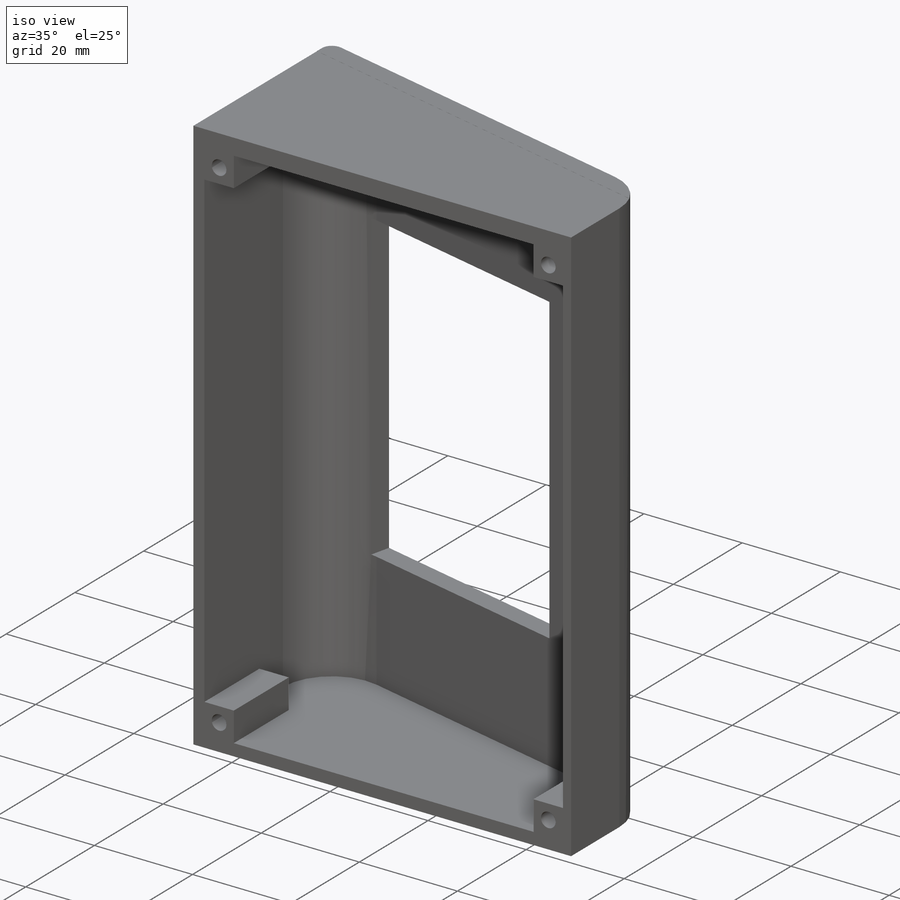
[diagram: iso view]
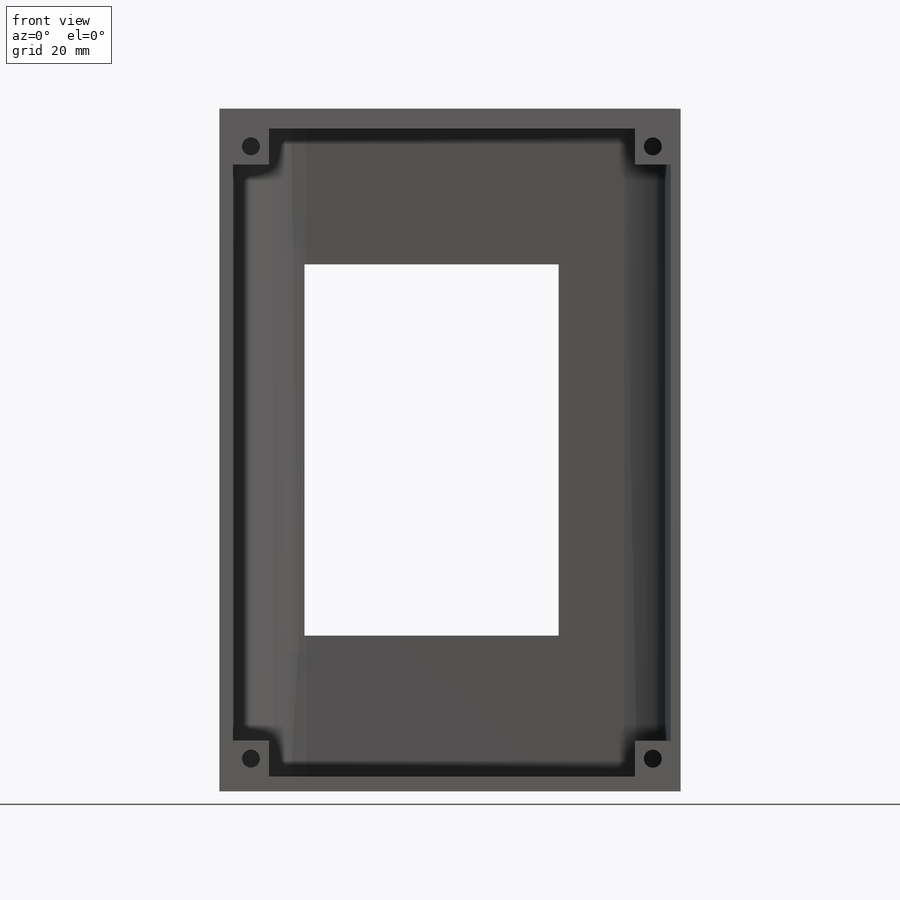
[diagram: front view]
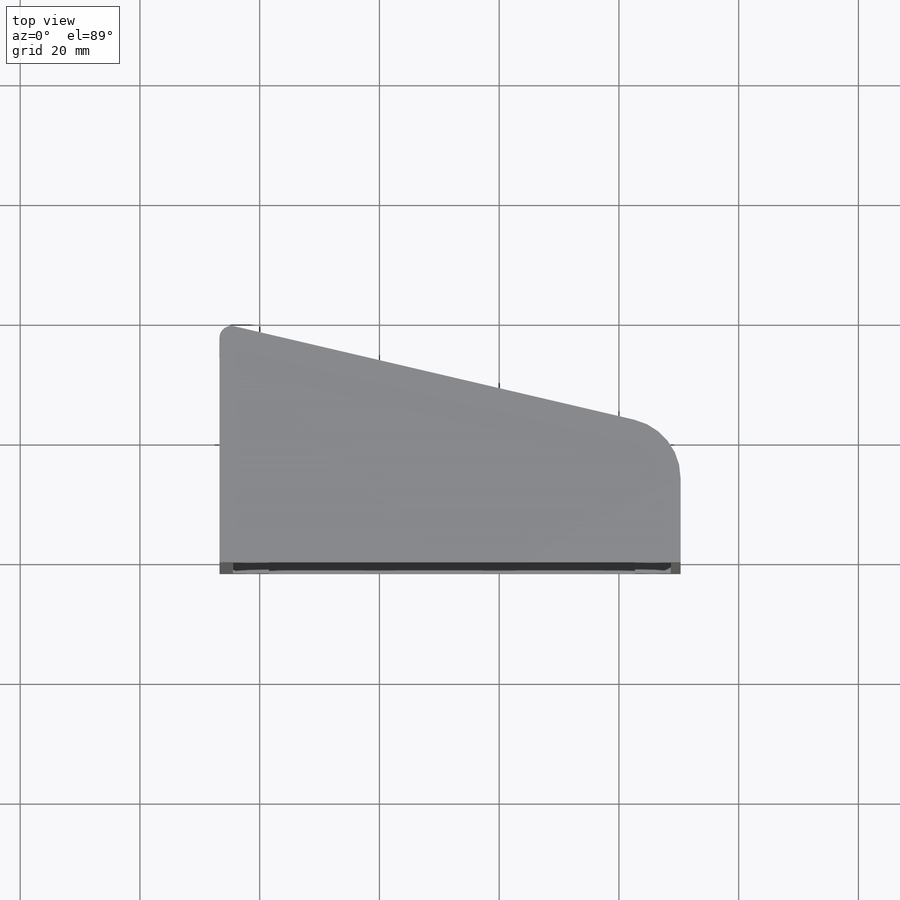
[diagram: top view]
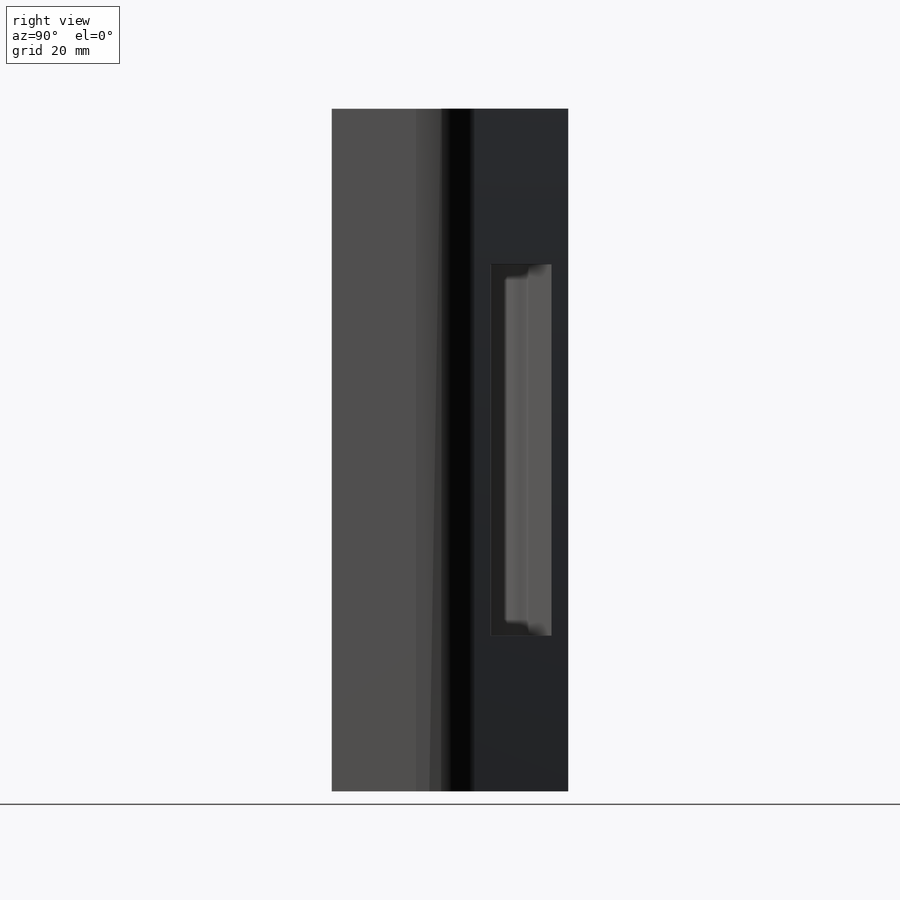
[diagram: right view]
SOLIDWORKS PART (.sldprt)
format: sldprt  version: not decoded by parser v0  size: 297,472 bytes
history: native  units: mm
features: sketch x5, fillet x4, plane x3, extrude x3, cut_extrude x2, material x1 (+10 scaffold rows collapsed)
feature tree (28):
  scaffold x10  (default folders/planes/origin — collapsed)
  material  "Material <não especificado>"
  plane  "Plano frontal"
  plane  "Plano superior"
  plane  "Plano direito"
  sketch  "Esboço1"  dims[c1.D1=77.0mm c1.D2=77.0mm c1.D3=22.0mm c2.D1=40.0mm]
  extrude  "Ressalto-extrusão1"  Depth=114mm
  sketch  "3DSketch1"  dims[D1=~21.607143mm D2=~3.317196mm D3=3.0mm D4=3.0mm D5=3.0mm]
  cut_extrude  "Corte-extrusão1"  Depth=59mm
  sketch  "3DSketch3"
  extrude  "Ressalto-extrusão3"  Depth=4mm
  fillet  "Filete1"  Radius=10mm
  fillet  "Filete2"  Radius=10mm
  fillet  "Filete3"  Radius=10mm
  fillet  "Filete4"  Radius=2mm
  sketch  "3DSketch4"  dims[D1=62.0mm D2=44.5mm D3=31.0mm D4=22.25mm]
  cut_extrude  "Corte-extrusão2"  Depth=19mm
  sketch  "3DSketch5"  dims[c1.D1=3.0mm c1.D2=3.0mm c1.D3=3.0mm c1.D4=3.0mm c1.D5=3.0mm c1.D6=3.0mm c2.D5=6.0mm c2.D6=6.0mm c2.D7=6.0mm c2.D8=6.0mm c2.D9=6.0mm c2.D10=6.0mm c2.D11=6.0mm c2.D12=6.0mm]
  extrude  "Ressalto-extrusão6"  Depth=16mm
decode coverage: 13 of 14 modeling features carry decoded parameters
note: ~ marks probable driven/reference dimensions
note: suppression state not decoded; provenance and decode notes live in map.json
